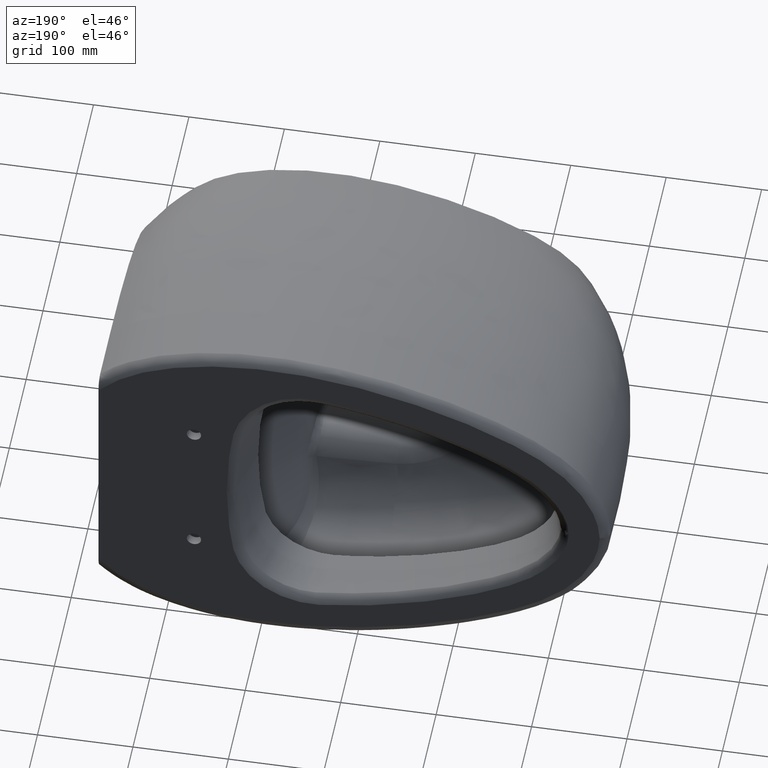
[diagram: clean part render]
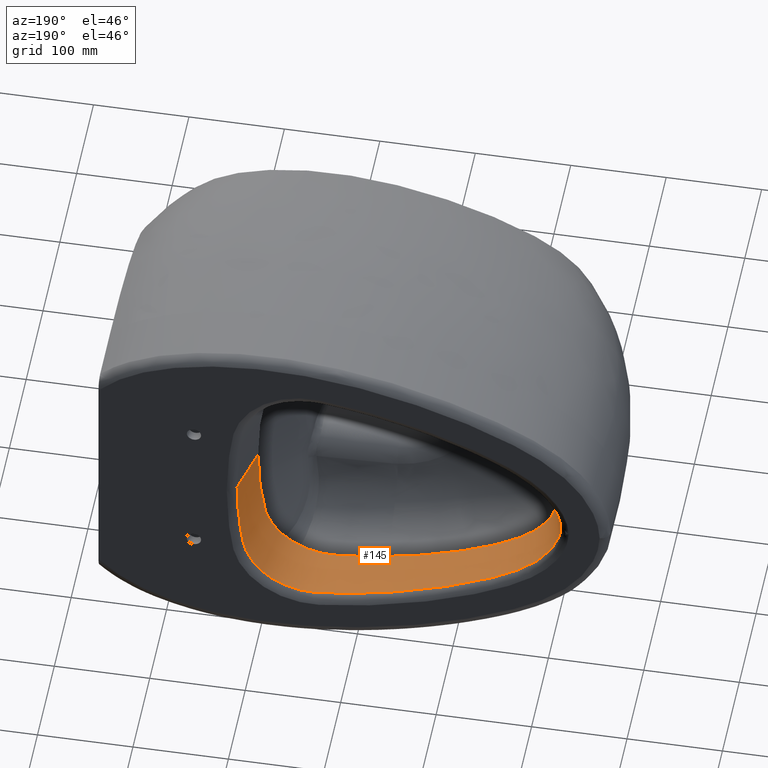
[diagram: same view with one face highlighted and labeled with its STEP entity id]
A machine part, auxiliary view. The second image highlights one B-rep face of the part: STEP entity #145.
In plain terms, the highlighted face is a freeform B-spline surface patch.
Its self-contained STEP definition (entity closure, byte-faithful):
#145=ADVANCED_FACE('',(#244),#205,.F.);
#205=B_SPLINE_SURFACE_WITH_KNOTS('',3,3,((#2837,#2838,#2839,#2840,#2841,
#2842,#2843),(#2844,#2845,#2846,#2847,#2848,#2849,#2850),(#2851,#2852,#2853,
#2854,#2855,#2856,#2857),(#2858,#2859,#2860,#2861,#2862,#2863,#2864),(#2865,
#2866,#2867,#2868,#2869,#2870,#2871),(#2872,#2873,#2874,#2875,#2876,#2877,
#2878),(#2879,#2880,#2881,#2882,#2883,#2884,#2885),(#2886,#2887,#2888,#2889,
#2890,#2891,#2892),(#2893,#2894,#2895,#2896,#2897,#2898,#2899),(#2900,#2901,
#2902,#2903,#2904,#2905,#2906),(#2907,#2908,#2909,#2910,#2911,#2912,#2913),
(#2914,#2915,#2916,#2917,#2918,#2919,#2920),(#2921,#2922,#2923,#2924,#2925,
#2926,#2927),(#2928,#2929,#2930,#2931,#2932,#2933,#2934),(#2935,#2936,#2937,
#2938,#2939,#2940,#2941),(#2942,#2943,#2944,#2945,#2946,#2947,#2948),(#2949,
#2950,#2951,#2952,#2953,#2954,#2955),(#2956,#2957,#2958,#2959,#2960,#2961,
#2962),(#2963,#2964,#2965,#2966,#2967,#2968,#2969),(#2970,#2971,#2972,#2973,
#2974,#2975,#2976),(#2977,#2978,#2979,#2980,#2981,#2982,#2983),(#2984,#2985,
#2986,#2987,#2988,#2989,#2990),(#2991,#2992,#2993,#2994,#2995,#2996,#2997),
(#2998,#2999,#3000,#3001,#3002,#3003,#3004),(#3005,#3006,#3007,#3008,#3009,
#3010,#3011),(#3012,#3013,#3014,#3015,#3016,#3017,#3018),(#3019,#3020,#3021,
#3022,#3023,#3024,#3025),(#3026,#3027,#3028,#3029,#3030,#3031,#3032),(#3033,
#3034,#3035,#3036,#3037,#3038,#3039),(#3040,#3041,#3042,#3043,#3044,#3045,
#3046),(#3047,#3048,#3049,#3050,#3051,#3052,#3053),(#3054,#3055,#3056,#3057,
#3058,#3059,#3060),(#3061,#3062,#3063,#3064,#3065,#3066,#3067),(#3068,#3069,
#3070,#3071,#3072,#3073,#3074),(#3075,#3076,#3077,#3078,#3079,#3080,#3081),
(#3082,#3083,#3084,#3085,#3086,#3087,#3088),(#3089,#3090,#3091,#3092,#3093,
#3094,#3095),(#3096,#3097,#3098,#3099,#3100,#3101,#3102),(#3103,#3104,#3105,
#3106,#3107,#3108,#3109),(#3110,#3111,#3112,#3113,#3114,#3115,#3116),(#3117,
#3118,#3119,#3120,#3121,#3122,#3123),(#3124,#3125,#3126,#3127,#3128,#3129,
#3130),(#3131,#3132,#3133,#3134,#3135,#3136,#3137),(#3138,#3139,#3140,#3141,
#3142,#3143,#3144),(#3145,#3146,#3147,#3148,#3149,#3150,#3151),(#3152,#3153,
#3154,#3155,#3156,#3157,#3158),(#3159,#3160,#3161,#3162,#3163,#3164,#3165)),
 .UNSPECIFIED.,.F.,.F.,.F.,(4,1,1,1,1,1,1,1,1,1,1,1,1,1,1,1,1,1,1,1,1,1,
1,1,1,1,1,1,1,1,1,1,1,1,1,1,1,1,1,1,1,1,1,1,4),(4,3,4),(0.,0.0078125,0.015625,
0.03125,0.0625,0.09375,0.125,0.140625,0.15625,0.171875,0.1875,0.203125,
0.21875,0.234375,0.25,0.28125,0.3125,0.375,0.40625,0.4375,0.46875,0.5,0.5625,
0.59375,0.6015625,0.609375,0.611328125,0.61328125,0.6171875,0.625,0.65625,
0.671875,0.6875,0.71875,0.75,0.78125,0.8125,0.828125,0.8359375,0.83984375,
0.84375,0.845703125,0.859375,0.875,1.),(0.,0.99009900990099,1.),
 .UNSPECIFIED.);
#244=FACE_OUTER_BOUND('',#306,.T.);
#306=EDGE_LOOP('',(#426,#427,#428,#429,#430,#431));
#426=ORIENTED_EDGE('',*,*,#804,.F.);
#427=ORIENTED_EDGE('',*,*,#805,.T.);
#428=ORIENTED_EDGE('',*,*,#806,.T.);
#429=ORIENTED_EDGE('',*,*,#807,.T.);
#430=ORIENTED_EDGE('',*,*,#787,.T.);
#431=ORIENTED_EDGE('',*,*,#808,.F.);
#688=VERTEX_POINT('',#2169);
#689=VERTEX_POINT('',#2170);
#700=VERTEX_POINT('',#2550);
#701=VERTEX_POINT('',#2561);
#702=VERTEX_POINT('',#2740);
#703=VERTEX_POINT('',#2822);
#787=EDGE_CURVE('',#688,#689,#934,.T.);
#804=EDGE_CURVE('',#701,#700,#950,.T.);
#805=EDGE_CURVE('',#701,#702,#951,.T.);
#806=EDGE_CURVE('',#702,#703,#952,.T.);
#807=EDGE_CURVE('',#703,#688,#953,.T.);
#808=EDGE_CURVE('',#700,#689,#954,.T.);
#934=B_SPLINE_CURVE_WITH_KNOTS('',3,(#2149,#2150,#2151,#2152,#2153,#2154,
#2155,#2156,#2157,#2158,#2159,#2160,#2161,#2162,#2163,#2164,#2165,#2166,
#2167,#2168),.UNSPECIFIED.,.F.,.F.,(4,2,2,2,2,2,2,2,2,4),(0.,0.03125,0.0624999999999999,
0.125,0.25,0.375,0.5,0.625,0.75,1.),.UNSPECIFIED.);
#950=B_SPLINE_CURVE_WITH_KNOTS('',3,(#2562,#2563,#2564,#2565,#2566,#2567,
#2568,#2569,#2570,#2571,#2572,#2573),.UNSPECIFIED.,.F.,.F.,(4,2,2,2,2,4),
(0.,0.5,0.625,0.75,0.875,1.),.UNSPECIFIED.);
#951=B_SPLINE_CURVE_WITH_KNOTS('',3,(#2736,#2737,#2738,#2739),
 .UNSPECIFIED.,.F.,.F.,(4,4),(0.,1.),.UNSPECIFIED.);
#952=B_SPLINE_CURVE_WITH_KNOTS('',3,(#2741,#2742,#2743,#2744,#2745,#2746,
#2747,#2748,#2749,#2750,#2751,#2752,#2753,#2754,#2755,#2756,#2757,#2758,
#2759,#2760,#2761,#2762,#2763,#2764,#2765,#2766,#2767,#2768,#2769,#2770,
#2771,#2772,#2773,#2774,#2775,#2776,#2777,#2778,#2779,#2780,#2781,#2782,
#2783,#2784,#2785,#2786,#2787,#2788,#2789,#2790,#2791,#2792,#2793,#2794,
#2795,#2796,#2797,#2798,#2799,#2800,#2801,#2802,#2803,#2804,#2805,#2806,
#2807,#2808,#2809,#2810,#2811,#2812,#2813,#2814,#2815,#2816,#2817,#2818,
#2819,#2820,#2821),.UNSPECIFIED.,.F.,.F.,(4,2,2,2,2,1,1,2,1,2,2,2,2,2,2,
2,2,1,1,2,2,2,2,2,2,2,1,1,1,2,2,2,2,2,2,1,1,1,2,2,2,2,2,2,2,4),(0.,0.124999999999844,
0.156249999999805,0.187499999999766,0.218749999999728,0.234374999999708,
0.242187499999698,0.246093749999694,0.248046874999691,0.24902343749969,
0.249999999999689,0.312499999999635,0.343749999999608,0.359374999999595,
0.367187499999588,0.371093749999585,0.373046874999583,0.374023437499582,
0.374511718749582,0.374755859374581,0.374999999999581,0.406249999999604,
0.437499999999628,0.468749999999651,0.484374999999662,0.492187499999668,
0.496093749999671,0.498046874999672,0.499023437499673,0.499511718749674,
0.499999999999674,0.624999999999757,0.687499999999799,0.71874999999982,
0.73437499999983,0.742187499999835,0.746093749999838,0.748046874999839,
0.74902343749984,0.749999999999841,0.81249999999988,0.87499999999992,0.93749999999996,
0.96874999999998,0.98437499999999,1.),.UNSPECIFIED.);
#953=B_SPLINE_CURVE_WITH_KNOTS('',3,(#2823,#2824,#2825,#2826),
 .UNSPECIFIED.,.F.,.F.,(4,4),(0.,1.),.UNSPECIFIED.);
#954=B_SPLINE_CURVE_WITH_KNOTS('',3,(#2827,#2828,#2829,#2830,#2831,#2832,
#2833,#2834,#2835,#2836),.UNSPECIFIED.,.F.,.F.,(4,2,2,2,4),(0.,0.250000000000002,
0.375000000000002,0.500000000000002,1.),.UNSPECIFIED.);
#2149=CARTESIAN_POINT('',(-4.68450389251631,373.011574058695,-34.684684684681));
#2150=CARTESIAN_POINT('',(-4.68450389251613,373.011574058695,-37.2037538531143));
#2151=CARTESIAN_POINT('',(-4.41474941482493,373.002536228739,-39.671128940657));
#2152=CARTESIAN_POINT('',(-3.58925548294863,372.975156375918,-44.5510764920664));
#2153=CARTESIAN_POINT('',(-3.03187753590156,372.956543322007,-46.963333586549));
#2154=CARTESIAN_POINT('',(-0.972341908452483,372.887829924153,-54.1258662573247));
#2155=CARTESIAN_POINT('',(0.917033854272169,372.824953225657,-58.7713456176021));
#2156=CARTESIAN_POINT('',(7.69366799256242,372.599362311384,-71.9202477777133));
#2157=CARTESIAN_POINT('',(13.8365630634917,372.394806290785,-79.9305153539391));
#2158=CARTESIAN_POINT('',(27.7509534725762,371.931035875029,-93.8393245571826));
#2159=CARTESIAN_POINT('',(35.6431003139265,371.66857428794,-99.8691441305384));
#2160=CARTESIAN_POINT('',(52.2423342454432,371.115216832952,-110.60282243534));
#2161=CARTESIAN_POINT('',(60.835969284613,370.82923150064,-115.310476695555));
#2162=CARTESIAN_POINT('',(78.3163784290997,370.247038939635,-124.068500691922));
#2163=CARTESIAN_POINT('',(87.2216789707791,369.950439891654,-128.077348903412));
#2164=CARTESIAN_POINT('',(105.268974695114,369.349246657315,-135.564341338923));
#2165=CARTESIAN_POINT('',(114.416243230933,369.044557877606,-139.030668165592));
#2166=CARTESIAN_POINT('',(142.214906145932,368.118706066951,-148.629542427032));
#2167=CARTESIAN_POINT('',(161.204977401436,367.486157307112,-154.006819646068));
#2168=CARTESIAN_POINT('',(180.419373846148,366.846151837253,-158.288270898246));
#2169=CARTESIAN_POINT('',(-4.68450397795358,373.011574060015,-34.6855868679316));
#2170=CARTESIAN_POINT('',(180.41938385458,366.846161480338,-158.288227423652));
#2550=CARTESIAN_POINT('',(273.57230624591,363.743439757752,-156.478493325376));
#2561=CARTESIAN_POINT('',(310.715017309683,362.506294025375,-34.6851593086544));
#2562=CARTESIAN_POINT('',(310.715017267497,362.506294031167,-34.6846846846841));
#2563=CARTESIAN_POINT('',(310.715016910963,362.506292700564,-56.993026893055));
#2564=CARTESIAN_POINT('',(309.165069047534,362.561712901396,-79.1819059586827));
#2565=CARTESIAN_POINT('',(305.305137666137,362.685448519114,-106.769863903267));
#2566=CARTESIAN_POINT('',(304.53851061223,362.711961952862,-112.316859503544));
#2567=CARTESIAN_POINT('',(301.427026098593,362.815465063649,-122.878235832974));
#2568=CARTESIAN_POINT('',(299.223797367524,362.888688889239,-128.006643434416));
#2569=CARTESIAN_POINT('',(293.644875153611,363.074476381591,-137.598346642469));
#2570=CARTESIAN_POINT('',(290.3271538595,363.185374371948,-141.986705863229));
#2571=CARTESIAN_POINT('',(282.647539434875,363.441228139899,-149.958004316312));
#2572=CARTESIAN_POINT('',(278.296543242479,363.585926471692,-153.507388923651));
#2573=CARTESIAN_POINT('',(273.572283539575,363.743446021292,-156.478456888224));
#2736=CARTESIAN_POINT('',(310.715017267497,362.506294031167,-34.6846846846867));
#2737=CARTESIAN_POINT('',(315.138626660977,379.015437543277,-34.6846846846868));
#2738=CARTESIAN_POINT('',(319.562236054474,395.524581055447,-34.6846846846869));
#2739=CARTESIAN_POINT('',(323.985845447959,412.033724567572,-34.6846846846869));
#2740=CARTESIAN_POINT('',(323.985845448559,412.033724567427,-34.6851796389409));
#2741=CARTESIAN_POINT('',(323.985845447961,412.033724567579,-34.6846846846836));
#2742=CARTESIAN_POINT('',(323.985845447961,412.033724567578,-55.7695589383243));
#2743=CARTESIAN_POINT('',(322.695804631658,412.046542313083,-76.8518271126382));
#2744=CARTESIAN_POINT('',(319.479602939617,412.078421330744,-103.014815608535));
#2745=CARTESIAN_POINT('',(318.75412033863,412.08560918819,-108.236108639438));
#2746=CARTESIAN_POINT('',(317.155588302037,412.101462862704,-118.656562644711));
#2747=CARTESIAN_POINT('',(315.919157442273,412.111697331766,-123.806832626016));
#2748=CARTESIAN_POINT('',(312.276450667981,412.137679952304,-133.700171461999));
#2749=CARTESIAN_POINT('',(309.926218093704,412.153231023193,-138.452153584337));
#2750=CARTESIAN_POINT('',(305.686698708586,412.18006783003,-145.126374915347));
#2751=CARTESIAN_POINT('',(303.388862357615,412.194361444857,-148.350344331482));
#2752=CARTESIAN_POINT('',(300.420425553843,412.212463864345,-151.882529763067));
#2753=CARTESIAN_POINT('',(299.089175812826,412.220516460128,-153.343894030603));
#2754=CARTESIAN_POINT('',(298.413921514593,412.224590888264,-154.065560075246));
#2755=CARTESIAN_POINT('',(298.073886662364,412.226640136024,-154.424138749363));
#2756=CARTESIAN_POINT('',(297.730282347656,412.228707252031,-154.77928559996));
#2757=CARTESIAN_POINT('',(297.500425645168,412.230089275362,-155.015283247841));
#2758=CARTESIAN_POINT('',(297.348740723141,412.231000647959,-155.169737926132));
#2759=CARTESIAN_POINT('',(292.190987272731,412.261976994739,-160.395082516557));
#2760=CARTESIAN_POINT('',(285.134961147046,412.210121916633,-166.035676668913));
#2761=CARTESIAN_POINT('',(270.789062569225,412.018218616106,-172.595723758524));
#2762=CARTESIAN_POINT('',(265.389255589607,411.935261579139,-174.446420291378));
#2763=CARTESIAN_POINT('',(256.446247588504,411.783381286573,-176.250706154519));
#2764=CARTESIAN_POINT('',(253.326402481186,411.728174725595,-176.68859641273));
#2765=CARTESIAN_POINT('',(248.468241681258,411.638563968796,-177.039466811405));
#2766=CARTESIAN_POINT('',(246.819274621124,411.607559730579,-177.105433973596));
#2767=CARTESIAN_POINT('',(244.306615581576,411.559355214468,-177.120026360306));
#2768=CARTESIAN_POINT('',(243.462538181593,411.543003969373,-177.110827848763));
#2769=CARTESIAN_POINT('',(242.1873771941,411.518052385548,-177.074925537861));
#2770=CARTESIAN_POINT('',(241.760816466037,411.509664405877,-177.059275089369));
#2771=CARTESIAN_POINT('',(241.118815160412,411.496976191311,-177.030140517033));
#2772=CARTESIAN_POINT('',(240.797274786979,411.490605518143,-177.014157252297));
#2773=CARTESIAN_POINT('',(240.421223856894,411.483126535541,-176.992996303134));
#2774=CARTESIAN_POINT('',(240.25986454662,411.479911281811,-176.98338478133));
#2775=CARTESIAN_POINT('',(240.152248715684,411.477765562029,-176.976856103983));
#2776=CARTESIAN_POINT('',(240.052634928572,411.475777552548,-176.970652840428));
#2777=CARTESIAN_POINT('',(239.012077948584,411.455003842888,-176.9052338842));
#2778=CARTESIAN_POINT('',(236.948249669892,411.435332783422,-176.738948390552));
#2779=CARTESIAN_POINT('',(230.78797667056,411.398161632368,-175.961894786554));
#2780=CARTESIAN_POINT('',(226.683460070004,411.380684600284,-175.425508949615));
#2781=CARTESIAN_POINT('',(216.450921587541,411.348389738627,-173.896252508627));
#2782=CARTESIAN_POINT('',(210.322318639785,411.333573345051,-172.905669247958));
#2783=CARTESIAN_POINT('',(199.644990777328,411.313709920108,-170.920716038388));
#2784=CARTESIAN_POINT('',(195.838654657721,411.307482636147,-170.175442613092));
#2785=CARTESIAN_POINT('',(189.764604697262,411.298778337235,-168.908327237192));
#2786=CARTESIAN_POINT('',(187.679180311291,411.295982995645,-168.461063043724));
#2787=CARTESIAN_POINT('',(184.460881981131,411.291954641422,-167.749647373729));
#2788=CARTESIAN_POINT('',(182.829194190273,411.289981625934,-167.38380763105));
#2789=CARTESIAN_POINT('',(180.88634358638,411.287752978756,-166.938547033814));
#2790=CARTESIAN_POINT('',(179.905144615088,411.28665709938,-166.711213752034));
#2791=CARTESIAN_POINT('',(179.482539631976,411.28619140457,-166.612767694329));
#2792=CARTESIAN_POINT('',(179.200338600847,411.285881825012,-166.546909858455));
#2793=CARTESIAN_POINT('',(179.011428866027,411.285675752608,-166.502724115826));
#2794=CARTESIAN_POINT('',(154.856594394298,411.259415285393,-160.845299682628));
#2795=CARTESIAN_POINT('',(133.157471719886,411.25235596343,-154.119755890766));
#2796=CARTESIAN_POINT('',(104.083723548558,411.264154669217,-143.455774523395));
#2797=CARTESIAN_POINT('',(94.973396656719,411.271837772878,-139.792461673229));
#2798=CARTESIAN_POINT('',(82.1656632429421,411.288440306398,-134.229700186745));
#2799=CARTESIAN_POINT('',(78.039298636756,411.294819439338,-132.364092359386));
#2800=CARTESIAN_POINT('',(72.0631472940901,411.305583788857,-129.557329062273));
#2801=CARTESIAN_POINT('',(70.1068342112011,411.30937073006,-128.62004146819));
#2802=CARTESIAN_POINT('',(67.2265041742412,411.315339329731,-127.21140585344));
#2803=CARTESIAN_POINT('',(65.7998703131998,411.318395700588,-126.506417042556));
#2804=CARTESIAN_POINT('',(64.1592223259951,411.322085641161,-125.682773355766));
#2805=CARTESIAN_POINT('',(63.3448449997366,411.32396142942,-125.270668162113));
#2806=CARTESIAN_POINT('',(62.9971011351988,411.324771918754,-125.093991637121));
#2807=CARTESIAN_POINT('',(62.7655552942366,411.325313704623,-124.976194038678));
#2808=CARTESIAN_POINT('',(62.6793883228733,411.325515843767,-124.932318533749));
#2809=CARTESIAN_POINT('',(53.2573957417022,411.347735112706,-120.126093696949));
#2810=CARTESIAN_POINT('',(44.158858376864,411.382434093556,-115.031019458068));
#2811=CARTESIAN_POINT('',(26.7897677677522,411.473381119981,-103.557660621451));
#2812=CARTESIAN_POINT('',(18.5422478566807,411.529552509154,-97.1148612590928));
#2813=CARTESIAN_POINT('',(3.99457030497213,411.656662828315,-82.23875047721));
#2814=CARTESIAN_POINT('',(-2.31867464687914,411.727660003017,-73.8178301584937));
#2815=CARTESIAN_POINT('',(-9.35837932047119,411.839939157324,-59.8945800605128));
#2816=CARTESIAN_POINT('',(-11.2956642244833,411.878311487952,-55.0431237090032));
#2817=CARTESIAN_POINT('',(-13.4208713366529,411.936551437507,-47.5409907962456));
#2818=CARTESIAN_POINT('',(-13.9991370326001,411.956079045413,-45.0028019118215));
#2819=CARTESIAN_POINT('',(-14.8579785118985,411.995179623201,-39.8758687067874));
#2820=CARTESIAN_POINT('',(-15.13538657952,412.014733817347,-37.2829705427515));
#2821=CARTESIAN_POINT('',(-15.1404765626824,412.033729861259,-34.6846846846847));
#2822=CARTESIAN_POINT('',(-15.1404765609514,412.033729860391,-34.6856307002495));
#2823=CARTESIAN_POINT('',(-15.1404765626709,412.033729861216,-34.6846846846847));
#2824=CARTESIAN_POINT('',(-11.6551523392818,399.026344593693,-34.6846846846847));
#2825=CARTESIAN_POINT('',(-8.16982811591674,386.01895932626,-34.6846846846847));
#2826=CARTESIAN_POINT('',(-4.6845038925164,373.011574058695,-34.6846846846847));
#2827=CARTESIAN_POINT('',(273.572283404919,363.74344523874,-156.478456715568));
#2828=CARTESIAN_POINT('',(266.774227246525,363.970089760041,-160.753720087956));
#2829=CARTESIAN_POINT('',(259.425919918306,364.214413202908,-163.76117305205));
#2830=CARTESIAN_POINT('',(247.673301698297,364.606185338089,-166.317344553908));
#2831=CARTESIAN_POINT('',(243.736410380258,364.73735050535,-166.816146834349));
#2832=CARTESIAN_POINT('',(235.825814816588,365.000688838155,-167.141810010848));
#2833=CARTESIAN_POINT('',(231.844741036837,365.133122933943,-166.923015384848));
#2834=CARTESIAN_POINT('',(211.922474580719,365.797443832727,-164.5106215512));
#2835=CARTESIAN_POINT('',(196.090648934007,366.324167977209,-161.780226488024));
#2836=CARTESIAN_POINT('',(180.419373799706,366.846156977605,-158.288271875067));
#2837=CARTESIAN_POINT('',(-17.1264671913483,419.445535360269,-34.6846846846847));
#2838=CARTESIAN_POINT('',(-12.979146091721,403.967548259682,-34.6846846846847));
#2839=CARTESIAN_POINT('',(-8.83182499214369,388.489561159282,-34.6846846846847));
#2840=CARTESIAN_POINT('',(-4.6845038925164,373.011574058695,-34.6846846846847));
#2841=CARTESIAN_POINT('',(-4.64303068152013,372.856794187689,-34.6846846846847));
#2842=CARTESIAN_POINT('',(-4.60155747052385,372.702014316683,-34.6846846846847));
#2843=CARTESIAN_POINT('',(-4.56008425952758,372.547234445677,-34.6846846846847));
#2844=CARTESIAN_POINT('',(-17.1264671913483,419.445535360269,-36.003234225338));
#2845=CARTESIAN_POINT('',(-12.9791460917211,403.967548259683,-35.967757358925));
#2846=CARTESIAN_POINT('',(-8.83182499214362,388.489561159281,-35.932280492512));
#2847=CARTESIAN_POINT('',(-4.68450389251639,373.011574058695,-35.896803626099));
#2848=CARTESIAN_POINT('',(-4.64303068152012,372.856794187689,-35.8964488574349));
#2849=CARTESIAN_POINT('',(-4.60155747052385,372.702014316683,-35.8960940887707));
#2850=CARTESIAN_POINT('',(-4.56008425952757,372.547234445677,-35.8957393201066));
#2851=CARTESIAN_POINT('',(-16.9892688164718,419.445535360269,-38.6397158448033));
#2852=CARTESIAN_POINT('',(-12.8459361196783,403.966157843832,-38.5332938370817));
#2853=CARTESIAN_POINT('',(-8.70260342293403,388.486780327577,-38.4268718293601));
#2854=CARTESIAN_POINT('',(-4.55927072614045,373.007402811139,-38.3204498216385));
#2855=CARTESIAN_POINT('',(-4.51783739917251,372.852609035975,-38.3193856015613));
#2856=CARTESIAN_POINT('',(-4.47640407220458,372.69781526081,-38.3183213814841));
#2857=CARTESIAN_POINT('',(-4.43497074523664,372.543021485646,-38.3172571614069));
#2858=CARTESIAN_POINT('',(-16.2773681289235,419.445535360269,-43.8688252088679));
#2859=CARTESIAN_POINT('',(-12.1534863881343,403.958901752859,-43.621765498179));
#2860=CARTESIAN_POINT('',(-8.02960464739337,388.472268145629,-43.3747057874901));
#2861=CARTESIAN_POINT('',(-3.90572290660393,372.985634538219,-43.1276460768013));
#2862=CARTESIAN_POINT('',(-3.86448408919604,372.830768202145,-43.1251754796944));
#2863=CARTESIAN_POINT('',(-3.82324527178814,372.675901866071,-43.1227048825875));
#2864=CARTESIAN_POINT('',(-3.78200645438025,372.521035529997,-43.1202342854806));
#2865=CARTESIAN_POINT('',(-14.2372177265357,419.445535360269,-52.8850180294216));
#2866=CARTESIAN_POINT('',(-10.1666874175191,403.938027766316,-52.3949414489463));
#2867=CARTESIAN_POINT('',(-6.09615710854913,388.430520172537,-51.9048648684712));
#2868=CARTESIAN_POINT('',(-2.02562679953209,372.923012578582,-51.4147882879959));
#2869=CARTESIAN_POINT('',(-1.98492149644192,372.767937502643,-51.4098875221911));
#2870=CARTESIAN_POINT('',(-1.94421619335175,372.612862426703,-51.4049867563864));
#2871=CARTESIAN_POINT('',(-1.90351089026158,372.457787350763,-51.4000859905816));
#2872=CARTESIAN_POINT('',(-9.33446937586602,419.445535360268,-65.1923555436388));
#2873=CARTESIAN_POINT('',(-5.39813689343747,403.888064271434,-64.3716200526499));
#2874=CARTESIAN_POINT('',(-1.46180441105341,388.330593182765,-63.550884561661));
#2875=CARTESIAN_POINT('',(2.47452807137575,372.773122093928,-62.730149070672));
#2876=CARTESIAN_POINT('',(2.51389139620004,372.61754738304,-62.7219417157621));
#2877=CARTESIAN_POINT('',(2.55325472102433,372.461972672151,-62.7137343608522));
#2878=CARTESIAN_POINT('',(2.59261804584863,372.306397961263,-62.7055270059423));
#2879=CARTESIAN_POINT('',(-0.956445660841981,419.445535360268,-78.6767812001573));
#2880=CARTESIAN_POINT('',(2.75560747215585,403.802516547928,-77.491731990776));
#2881=CARTESIAN_POINT('',(6.46766060511181,388.159497735744,-76.3066827813948));
#2882=CARTESIAN_POINT('',(10.1797137381105,372.516478923401,-75.1216335720135));
#2883=CARTESIAN_POINT('',(10.2168342694405,372.360048735278,-75.1097830799197));
#2884=CARTESIAN_POINT('',(10.2539548007705,372.203618547154,-75.0979325878259));
#2885=CARTESIAN_POINT('',(10.2910753321005,372.047188359031,-75.0860820957321));
#2886=CARTESIAN_POINT('',(7.64338833730811,419.445535360267,-88.7155204632897));
#2887=CARTESIAN_POINT('',(11.1227228510516,403.714787243791,-87.2602057440047));
#2888=CARTESIAN_POINT('',(14.6020573647553,387.984039127462,-85.8048910247197));
#2889=CARTESIAN_POINT('',(18.0813918784998,372.253291010981,-84.3495763054347));
#2890=CARTESIAN_POINT('',(18.1161852236372,372.095983529816,-84.3350231582418));
#2891=CARTESIAN_POINT('',(18.1509785687747,371.938676048651,-84.320470011049));
#2892=CARTESIAN_POINT('',(18.1857719139121,371.781368567487,-84.3059168638561));
#2893=CARTESIAN_POINT('',(15.2672116648689,419.445535360267,-96.0109910248128));
#2894=CARTESIAN_POINT('',(18.5398877333955,403.637026203705,-94.3597168751356));
#2895=CARTESIAN_POINT('',(21.8125638018841,387.828517047285,-92.7084427254586));
#2896=CARTESIAN_POINT('',(25.0852398704118,372.020007890719,-91.0571685757815));
#2897=CARTESIAN_POINT('',(25.1179666310971,371.861922799153,-91.0406558342847));
#2898=CARTESIAN_POINT('',(25.1506933917824,371.703837707588,-91.024143092788));
#2899=CARTESIAN_POINT('',(25.1834201524676,371.545752616022,-91.0076303512912));
#2900=CARTESIAN_POINT('',(21.3043088850131,419.445535360267,-101.130429072038));
#2901=CARTESIAN_POINT('',(24.4137391385316,403.575435994104,-99.341157664043));
#2902=CARTESIAN_POINT('',(27.5231693920133,387.705336628077,-97.5518862560479));
#2903=CARTESIAN_POINT('',(30.632599645533,371.835237261909,-95.7626148480527));
#2904=CARTESIAN_POINT('',(30.6636939480682,371.676536268247,-95.7447221339728));
#2905=CARTESIAN_POINT('',(30.6947882506034,371.517835274586,-95.7268294198928));
#2906=CARTESIAN_POINT('',(30.7258825531386,371.359134280924,-95.7089367058128));
#2907=CARTESIAN_POINT('',(27.6078874895842,419.445535360267,-105.913297795921));
#2908=CARTESIAN_POINT('',(30.5459320451079,403.511158265821,-103.996431490184));
#2909=CARTESIAN_POINT('',(33.4839766005959,387.576781171508,-102.079565184446));
#2910=CARTESIAN_POINT('',(36.4220211561209,371.642404077057,-100.162698878709));
#2911=CARTESIAN_POINT('',(36.4514016016761,371.483060306113,-100.143530215652));
#2912=CARTESIAN_POINT('',(36.4807820472314,371.323716535168,-100.124361552594));
#2913=CARTESIAN_POINT('',(36.5101624927866,371.164372764223,-100.105192889537));
#2914=CARTESIAN_POINT('',(34.1279645273441,419.445535360267,-110.399467720618));
#2915=CARTESIAN_POINT('',(36.8882118971926,403.444690391278,-108.363469515008));
#2916=CARTESIAN_POINT('',(39.6484592670067,387.443845422416,-106.327471309398));
#2917=CARTESIAN_POINT('',(42.4087066368565,371.443000453423,-104.291473103788));
#2918=CARTESIAN_POINT('',(42.436309110555,371.282992003733,-104.271113121732));
#2919=CARTESIAN_POINT('',(42.4639115842535,371.122983554043,-104.250753139676));
#2920=CARTESIAN_POINT('',(42.491514057952,370.962975104353,-104.23039315762));
#2921=CARTESIAN_POINT('',(40.8145570470547,419.445535360267,-114.628809370287));
#2922=CARTESIAN_POINT('',(43.3944422504112,403.376459193151,-112.477933070264));
#2923=CARTESIAN_POINT('',(45.9743274537344,387.307383026159,-110.327056770242));
#2924=CARTESIAN_POINT('',(48.5542126570923,371.238306859038,-108.176180470219));
#2925=CARTESIAN_POINT('',(48.5800115091259,371.077616097367,-108.154671707219));
#2926=CARTESIAN_POINT('',(48.6058103611595,370.916925335696,-108.133162944219));
#2927=CARTESIAN_POINT('',(48.631609213193,370.756234574024,-108.111654181218));
#2928=CARTESIAN_POINT('',(47.6347943953483,419.445535360267,-118.64060286234));
#2929=CARTESIAN_POINT('',(50.0320982799195,403.306818102903,-116.378337866014));
#2930=CARTESIAN_POINT('',(52.4294021644585,387.168100845658,-114.116072869688));
#2931=CARTESIAN_POINT('',(54.8267060490311,371.02938358829,-111.853807873363));
#2932=CARTESIAN_POINT('',(54.8506790878768,370.867996415716,-111.8311852234));
#2933=CARTESIAN_POINT('',(54.8746521267226,370.706609243143,-111.808562573436));
#2934=CARTESIAN_POINT('',(54.8986251655683,370.545222070569,-111.785939923473));
#2935=CARTESIAN_POINT('',(54.5558059188569,419.445535360267,-122.474128314188));
#2936=CARTESIAN_POINT('',(56.7672700692044,403.236166686423,-120.105900816053));
#2937=CARTESIAN_POINT('',(58.9787342195208,387.026798012692,-117.737673317919));
#2938=CARTESIAN_POINT('',(61.1901983698698,370.817429338842,-115.369445819784));
#2939=CARTESIAN_POINT('',(61.2123130113733,370.655335652104,-115.345763544803));
#2940=CARTESIAN_POINT('',(61.2344276528768,370.493241965365,-115.322081269821));
#2941=CARTESIAN_POINT('',(61.2565422943803,370.331148278627,-115.29839899484));
#2942=CARTESIAN_POINT('',(63.9030347328238,419.445535360267,-127.364118506792));
#2943=CARTESIAN_POINT('',(65.8621857928725,403.140791993786,-124.862877199906));
#2944=CARTESIAN_POINT('',(67.8213368528915,386.836048627412,-122.36163589302));
#2945=CARTESIAN_POINT('',(69.7804879129417,370.531305260925,-119.860394586135));
#2946=CARTESIAN_POINT('',(69.8000794235422,370.36825782726,-119.835382173066));
#2947=CARTESIAN_POINT('',(69.8196709341427,370.205210393595,-119.810369759997));
#2948=CARTESIAN_POINT('',(69.8392624447432,370.04216295993,-119.785357346928));
#2949=CARTESIAN_POINT('',(75.7821857470774,419.445535360266,-133.092112311082));
#2950=CARTESIAN_POINT('',(77.4204511509454,403.019590344055,-130.435261666339));
#2951=CARTESIAN_POINT('',(79.0587165547853,386.593645327943,-127.778411021596));
#2952=CARTESIAN_POINT('',(80.6969819586547,370.167700311725,-125.121560376853));
#2953=CARTESIAN_POINT('',(80.7133646126934,370.003440861563,-125.094991870406));
#2954=CARTESIAN_POINT('',(80.7297472667321,369.839181411401,-125.068423363958));
#2955=CARTESIAN_POINT('',(80.7461299207708,369.674921961238,-125.041854857511));
#2956=CARTESIAN_POINT('',(95.0895114819796,419.445535360266,-141.602348593181));
#2957=CARTESIAN_POINT('',(96.2090613369693,402.822505805634,-138.707303273312));
#2958=CARTESIAN_POINT('',(97.3286111919338,386.199476251091,-135.812257953443));
#2959=CARTESIAN_POINT('',(98.448161046925,369.576446696453,-132.917212633573));
#2960=CARTESIAN_POINT('',(98.4593565454749,369.410216400907,-132.888262180374));
#2961=CARTESIAN_POINT('',(98.4705520440248,369.24398610536,-132.859311727176));
#2962=CARTESIAN_POINT('',(98.4817475425747,369.077755809814,-132.830361273977));
#2963=CARTESIAN_POINT('',(114.788962611142,419.445535360266,-149.180268205021));
#2964=CARTESIAN_POINT('',(115.375151634477,402.621555452126,-146.081090492558));
#2965=CARTESIAN_POINT('',(115.96134065779,385.797575544063,-142.981912780095));
#2966=CARTESIAN_POINT('',(116.547529681126,368.973595635917,-139.882735067632));
#2967=CARTESIAN_POINT('',(116.553391571359,368.805355836835,-139.851743290507));
#2968=CARTESIAN_POINT('',(116.559253461593,368.637116037754,-139.820751513383));
#2969=CARTESIAN_POINT('',(116.565115351826,368.468876238673,-139.789759736258));
#2970=CARTESIAN_POINT('',(134.790368197807,419.445535360267,-155.895672454241));
#2971=CARTESIAN_POINT('',(134.837037305109,402.417457759859,-152.609828710546));
#2972=CARTESIAN_POINT('',(134.88370641239,385.389380159517,-149.32398496685));
#2973=CARTESIAN_POINT('',(134.930375519694,368.361302559102,-146.038141223155));
#2974=CARTESIAN_POINT('',(134.930842210767,368.191021783098,-146.005282785718));
#2975=CARTESIAN_POINT('',(134.93130890184,368.020741007094,-145.972424348281));
#2976=CARTESIAN_POINT('',(134.931775592913,367.850460231089,-145.939565910844));
#2977=CARTESIAN_POINT('',(149.926099020286,419.445535360267,-160.512857138023));
#2978=CARTESIAN_POINT('',(149.564945472902,402.262995237104,-157.096253676736));
#2979=CARTESIAN_POINT('',(149.203791925499,385.080455113999,-153.679650215449));
#2980=CARTESIAN_POINT('',(148.842638378117,367.897914990831,-150.263046754161));
#2981=CARTESIAN_POINT('',(148.839026842643,367.726089589599,-150.228880719548));
#2982=CARTESIAN_POINT('',(148.835415307169,367.554264188368,-150.194714684935));
#2983=CARTESIAN_POINT('',(148.831803771696,367.382438787136,-150.160548650322));
#2984=CARTESIAN_POINT('',(165.180205878976,419.445535360265,-164.722562496851));
#2985=CARTESIAN_POINT('',(164.407514948218,402.107342160212,-161.187182691673));
#2986=CARTESIAN_POINT('',(163.634824017443,384.769148960209,-157.651802886496));
#2987=CARTESIAN_POINT('',(162.862133086687,367.43095576015,-154.116423081319));
#2988=CARTESIAN_POINT('',(162.854406177379,367.257573828149,-154.081069283267));
#2989=CARTESIAN_POINT('',(162.846679268072,367.084191896149,-154.045715485215));
#2990=CARTESIAN_POINT('',(162.838952358764,366.910809964148,-154.010361687164));
#2991=CARTESIAN_POINT('',(185.666707444154,419.445535360242,-169.767661432834));
#2992=CARTESIAN_POINT('',(184.340829100928,401.898313868113,-166.090600965551));
#2993=CARTESIAN_POINT('',(183.014950757685,384.351092376023,-162.413540498269));
#2994=CARTESIAN_POINT('',(181.68907241446,366.803870883889,-158.736480030987));
#2995=CARTESIAN_POINT('',(181.675813631028,366.628398668968,-158.699709426314));
#2996=CARTESIAN_POINT('',(181.662554847595,366.452926454046,-158.662938821641));
#2997=CARTESIAN_POINT('',(181.649296064163,366.277454239125,-158.626168216969));
#2998=CARTESIAN_POINT('',(206.359534197691,419.445535360161,-173.924194391365));
#2999=CARTESIAN_POINT('',(204.474538177218,401.687192350853,-170.129252005898));
#3000=CARTESIAN_POINT('',(202.589542156731,383.928849341574,-166.33430962043));
#3001=CARTESIAN_POINT('',(200.704546136259,366.170506332261,-162.539367234963));
#3002=CARTESIAN_POINT('',(200.685696176054,365.992922902168,-162.501417811108));
#3003=CARTESIAN_POINT('',(200.66684621585,365.815339472075,-162.463468387254));
#3004=CARTESIAN_POINT('',(200.647996255645,365.637756041982,-162.425518963399));
#3005=CARTESIAN_POINT('',(223.301887891437,419.445535360005,-176.540483380488));
#3006=CARTESIAN_POINT('',(220.958981714449,401.51433989364,-172.670289160016));
#3007=CARTESIAN_POINT('',(218.616075537448,383.583144427295,-168.800094939544));
#3008=CARTESIAN_POINT('',(216.273169360461,365.651948960925,-164.929900719072));
#3009=CARTESIAN_POINT('',(216.249740298691,365.472637006261,-164.891198776867));
#3010=CARTESIAN_POINT('',(216.226311236921,365.293325051598,-164.852496834663));
#3011=CARTESIAN_POINT('',(216.202882175151,365.114013096934,-164.813794892458));
#3012=CARTESIAN_POINT('',(231.142018832712,419.445535359915,-177.59998675144));
#3013=CARTESIAN_POINT('',(228.587145764046,401.434354085897,-173.698454783556));
#3014=CARTESIAN_POINT('',(226.032272695367,383.423172811894,-169.796922815672));
#3015=CARTESIAN_POINT('',(223.477399626702,365.411991537872,-165.895390847788));
#3016=CARTESIAN_POINT('',(223.451850896015,365.231879725132,-165.856375528109));
#3017=CARTESIAN_POINT('',(223.426302165329,365.051767912392,-165.81736020843));
#3018=CARTESIAN_POINT('',(223.400753434642,364.871656099651,-165.778344888751));
#3019=CARTESIAN_POINT('',(234.085241330067,419.445535359877,-177.972879945363));
#3020=CARTESIAN_POINT('',(231.450751085734,401.404328491416,-174.060861906246));
#3021=CARTESIAN_POINT('',(228.816260841386,383.363121622969,-170.14884386713));
#3022=CARTESIAN_POINT('',(226.181770597053,365.321914754504,-166.236825828013));
#3023=CARTESIAN_POINT('',(226.15542569461,365.141502685819,-166.197705647622));
#3024=CARTESIAN_POINT('',(226.129080792166,364.961090617135,-166.158585467231));
#3025=CARTESIAN_POINT('',(226.102735889723,364.78067854845,-166.119465286839));
#3026=CARTESIAN_POINT('',(236.048141462493,419.44553535985,-178.21561752271));
#3027=CARTESIAN_POINT('',(233.360707306979,401.384298611359,-174.295702852628));
#3028=CARTESIAN_POINT('',(230.67327315145,383.323061862883,-170.375788182546));
#3029=CARTESIAN_POINT('',(227.985838995936,365.261825114389,-166.455873512464));
#3030=CARTESIAN_POINT('',(227.958964654381,365.081212746904,-166.416674365763));
#3031=CARTESIAN_POINT('',(227.932090312826,364.900600379419,-166.377475219062));
#3032=CARTESIAN_POINT('',(227.905215971271,364.719988011934,-166.338276072362));
#3033=CARTESIAN_POINT('',(237.357324209407,419.445535359838,-178.372512679548));
#3034=CARTESIAN_POINT('',(234.634456738566,401.370943464608,-174.44861625739));
#3035=CARTESIAN_POINT('',(231.911589267711,383.296351569391,-170.524719835233));
#3036=CARTESIAN_POINT('',(229.18872179687,365.221759674157,-166.600823413075));
#3037=CARTESIAN_POINT('',(229.161493122162,365.041013755205,-166.561584448853));
#3038=CARTESIAN_POINT('',(229.134264447453,364.860267836252,-166.522345484632));
#3039=CARTESIAN_POINT('',(229.107035772745,364.6795219173,-166.48310652041));
#3040=CARTESIAN_POINT('',(239.653028491171,419.445535359845,-178.60712619763));
#3041=CARTESIAN_POINT('',(236.86756353375,401.347540127493,-174.680036674919));
#3042=CARTESIAN_POINT('',(234.082098576314,383.249544895153,-170.752947152208));
#3043=CARTESIAN_POINT('',(231.296633618893,365.151549662797,-166.825857629497));
#3044=CARTESIAN_POINT('',(231.268778969319,364.970569710473,-166.78658673427));
#3045=CARTESIAN_POINT('',(231.240924319745,364.78958975815,-166.747315839043));
#3046=CARTESIAN_POINT('',(231.21306967017,364.608609805826,-166.708044943816));
#3047=CARTESIAN_POINT('',(246.893952187787,419.445535359838,-179.053081315505));
#3048=CARTESIAN_POINT('',(243.912219337804,401.273684188289,-175.119741912623));
#3049=CARTESIAN_POINT('',(240.930486487807,383.101833016749,-171.186402509742));
#3050=CARTESIAN_POINT('',(237.948753637824,364.929981845196,-167.25306310686));
#3051=CARTESIAN_POINT('',(237.918936309324,364.74826333348,-167.213729712831));
#3052=CARTESIAN_POINT('',(237.889118980824,364.566544821765,-167.174396318802));
#3053=CARTESIAN_POINT('',(237.859301652325,364.384826310049,-167.135062924774));
#3054=CARTESIAN_POINT('',(256.152346212547,419.445535359842,-178.402791074377));
#3055=CARTESIAN_POINT('',(252.920311046188,401.179228819717,-174.495600564983));
#3056=CARTESIAN_POINT('',(249.688275879817,382.912922279596,-170.588410055589));
#3057=CARTESIAN_POINT('',(246.456240713458,364.646615739467,-166.681219546195));
#3058=CARTESIAN_POINT('',(246.423920361794,364.463952674066,-166.642147641101));
#3059=CARTESIAN_POINT('',(246.391600010131,364.281289608664,-166.603075736007));
#3060=CARTESIAN_POINT('',(246.359279658467,364.098626543263,-166.564003830913));
#3061=CARTESIAN_POINT('',(266.440658911359,419.445535359843,-176.009527681318));
#3062=CARTESIAN_POINT('',(262.932449148836,401.074200408834,-172.176444017898));
#3063=CARTESIAN_POINT('',(259.424239386299,382.702865457824,-168.343360354479));
#3064=CARTESIAN_POINT('',(255.916029623776,364.331530506811,-164.510276691059));
#3065=CARTESIAN_POINT('',(255.880947526151,364.147817157301,-164.471945854425));
#3066=CARTESIAN_POINT('',(255.845865428526,363.964103807791,-164.433615017791));
#3067=CARTESIAN_POINT('',(255.8107833309,363.780390458281,-164.395284181156));
#3068=CARTESIAN_POINT('',(276.420826600107,419.445535359842,-172.549043409931));
#3069=CARTESIAN_POINT('',(272.644271861342,400.972332426094,-168.81430897974));
#3070=CARTESIAN_POINT('',(268.867717122563,382.499129492341,-165.07957454955));
#3071=CARTESIAN_POINT('',(265.091162383798,364.02592655859,-161.34484011936));
#3072=CARTESIAN_POINT('',(265.05339683641,363.841194529253,-161.307492775058));
#3073=CARTESIAN_POINT('',(265.015631289023,363.656462499915,-161.270145430756));
#3074=CARTESIAN_POINT('',(264.977865741635,363.471730470578,-161.232798086454));
#3075=CARTESIAN_POINT('',(288.106378728014,419.445535359843,-166.283952959537));
#3076=CARTESIAN_POINT('',(284.018120017118,400.852974408446,-162.726638052011));
#3077=CARTESIAN_POINT('',(279.929861306209,382.260413457037,-159.169323144484));
#3078=CARTESIAN_POINT('',(275.841602595313,363.667852505637,-155.612008236957));
#3079=CARTESIAN_POINT('',(275.800720008204,363.481926896123,-155.576435087882));
#3080=CARTESIAN_POINT('',(275.759837421095,363.296001286609,-155.540861938806));
#3081=CARTESIAN_POINT('',(275.718954833986,363.110075677095,-155.505288789731));
#3082=CARTESIAN_POINT('',(300.243815529629,419.445535359843,-155.996136934113));
#3083=CARTESIAN_POINT('',(295.831594609802,400.729007583962,-152.720832736843));
#3084=CARTESIAN_POINT('',(291.419373689961,382.012479808062,-149.445528539572));
#3085=CARTESIAN_POINT('',(287.007152770134,363.295952032179,-146.170224342302));
#3086=CARTESIAN_POINT('',(286.963030560936,363.10878675442,-146.137471300329));
#3087=CARTESIAN_POINT('',(286.918908351738,362.921621476661,-146.104718258357));
#3088=CARTESIAN_POINT('',(286.874786142539,362.734456198903,-146.071965216384));
#3089=CARTESIAN_POINT('',(309.957777607465,419.445535359843,-143.394588183675));
#3090=CARTESIAN_POINT('',(305.289919873065,400.629671898555,-140.464277828912));
#3091=CARTESIAN_POINT('',(300.622062138653,381.81380843724,-137.533967474149));
#3092=CARTESIAN_POINT('',(295.954204404254,362.997944975949,-134.603657119386));
#3093=CARTESIAN_POINT('',(295.90752582691,362.809786341336,-134.574354015838));
#3094=CARTESIAN_POINT('',(295.860847249566,362.621627706723,-134.545050912291));
#3095=CARTESIAN_POINT('',(295.814168672222,362.43346907211,-134.515747808743));
#3096=CARTESIAN_POINT('',(315.675121866686,419.445535359843,-131.431374748836));
#3097=CARTESIAN_POINT('',(310.858299580183,400.571156105369,-128.825736729378));
#3098=CARTESIAN_POINT('',(306.041477293666,381.696776850862,-126.220098709921));
#3099=CARTESIAN_POINT('',(301.224655007163,362.822397596387,-123.614460690464));
#3100=CARTESIAN_POINT('',(301.176486784298,362.633653803842,-123.588404310269));
#3101=CARTESIAN_POINT('',(301.128318561433,362.444910011298,-123.562347930075));
#3102=CARTESIAN_POINT('',(301.080150338568,362.256166218753,-123.53629154988));
#3103=CARTESIAN_POINT('',(318.292708884019,419.445535359843,-122.567292613787));
#3104=CARTESIAN_POINT('',(313.411650387357,400.544233609956,-120.202082522364));
#3105=CARTESIAN_POINT('',(308.53059189068,381.642931860032,-117.836872430942));
#3106=CARTESIAN_POINT('',(303.649533394018,362.741630110144,-115.471662339519));
#3107=CARTESIAN_POINT('',(303.600722809051,362.552617092645,-115.448010238605));
#3108=CARTESIAN_POINT('',(303.551912224085,362.363604075146,-115.424358137691));
#3109=CARTESIAN_POINT('',(303.503101639118,362.174591057647,-115.400706036776));
#3110=CARTESIAN_POINT('',(319.252714054674,419.445535359843,-118.051500806927));
#3111=CARTESIAN_POINT('',(314.346795127134,400.534403087971,-115.808062308144));
#3112=CARTESIAN_POINT('',(309.440876199578,381.623270816059,-113.564623809362));
#3113=CARTESIAN_POINT('',(304.534957272037,362.712138544185,-111.321185310579));
#3114=CARTESIAN_POINT('',(304.485898082762,362.523027221466,-111.298750925591));
#3115=CARTESIAN_POINT('',(304.436838893486,362.333915898747,-111.276316540603));
#3116=CARTESIAN_POINT('',(304.387779704211,362.144804576029,-111.253882155615));
#3117=CARTESIAN_POINT('',(319.688337242787,419.445535359843,-115.450195971469));
#3118=CARTESIAN_POINT('',(314.773626972496,400.52985935139,-113.277326153475));
#3119=CARTESIAN_POINT('',(309.858916702191,381.614183342897,-111.104456335481));
#3120=CARTESIAN_POINT('',(304.944206431901,362.698507334443,-108.931586517487));
#3121=CARTESIAN_POINT('',(304.895059329198,362.509350574358,-108.909857819307));
#3122=CARTESIAN_POINT('',(304.845912226495,362.320193814274,-108.888129121127));
#3123=CARTESIAN_POINT('',(304.796765123792,362.131037054189,-108.866400422947));
#3124=CARTESIAN_POINT('',(319.937330408601,419.445535359843,-113.820913963732));
#3125=CARTESIAN_POINT('',(315.015039022784,400.527347386356,-111.691745814089));
#3126=CARTESIAN_POINT('',(310.092747636952,381.609159412828,-109.562577664447));
#3127=CARTESIAN_POINT('',(305.170456251134,362.690971439339,-107.433409514805));
#3128=CARTESIAN_POINT('',(305.121233337276,362.501789559604,-107.412117833309));
#3129=CARTESIAN_POINT('',(305.072010423418,362.312607679869,-107.390826151812));
#3130=CARTESIAN_POINT('',(305.022787509559,362.123425800134,-107.369534470316));
#3131=CARTESIAN_POINT('',(320.431904233057,419.445535359843,-110.563099906928));
#3132=CARTESIAN_POINT('',(315.496766210293,400.522284216585,-108.521285905651));
#3133=CARTESIAN_POINT('',(310.561628187514,381.599033073284,-106.479471904374));
#3134=CARTESIAN_POINT('',(305.62649016475,362.675781930025,-104.437657903097));
#3135=CARTESIAN_POINT('',(305.577138784522,362.486549418592,-104.417239763084));
#3136=CARTESIAN_POINT('',(305.527787404295,362.29731690716,-104.396821623071));
#3137=CARTESIAN_POINT('',(305.478436024067,362.108084395727,-104.376403483059));
#3138=CARTESIAN_POINT('',(321.183837849249,419.445535359843,-105.342883763786));
#3139=CARTESIAN_POINT('',(316.227909032293,400.514628282477,-103.441383765628));
#3140=CARTESIAN_POINT('',(311.271980215323,381.583721205066,-101.53988376747));
#3141=CARTESIAN_POINT('',(306.316051398368,362.6528141277,-99.6383837693118));
#3142=CARTESIAN_POINT('',(306.266492110198,362.463505056926,-99.6193687693302));
#3143=CARTESIAN_POINT('',(306.216932822029,362.274195986153,-99.6003537693486));
#3144=CARTESIAN_POINT('',(306.167373533859,362.084886915379,-99.5813387693671));
#3145=CARTESIAN_POINT('',(324.531842156466,419.445535359843,-79.5127306313202));
#3146=CARTESIAN_POINT('',(319.484999005811,400.480484834769,-78.3074410268678));
#3147=CARTESIAN_POINT('',(314.438155855138,381.515434309636,-77.1021514224156));
#3148=CARTESIAN_POINT('',(309.391312704483,362.55038378456,-75.8968618179633));
#3149=CARTESIAN_POINT('',(309.340844272977,362.360733279309,-75.8848089219188));
#3150=CARTESIAN_POINT('',(309.29037584147,362.171082774058,-75.8727560258743));
#3151=CARTESIAN_POINT('',(309.239907409964,361.981432268808,-75.8607031298297));
#3152=CARTESIAN_POINT('',(325.971833141345,419.445535359843,-55.7815467176335));
#3153=CARTESIAN_POINT('',(320.886227850068,400.465788250307,-55.2139141031151));
#3154=CARTESIAN_POINT('',(315.800622558773,381.486041140703,-54.6462814885968));
#3155=CARTESIAN_POINT('',(310.715017267497,362.506294031167,-54.0786488740784));
#3156=CARTESIAN_POINT('',(310.664161214584,362.316496560072,-54.0729725479332));
#3157=CARTESIAN_POINT('',(310.613305161671,362.126699088976,-54.067296221788));
#3158=CARTESIAN_POINT('',(310.562449108759,361.936901617881,-54.0616198956428));
#3159=CARTESIAN_POINT('',(325.971833141345,419.445535359843,-34.6846846846836));
#3160=CARTESIAN_POINT('',(320.886227850069,400.465788250311,-34.6846846846836));
#3161=CARTESIAN_POINT('',(315.800622558772,381.4860411407,-34.6846846846836));
#3162=CARTESIAN_POINT('',(310.715017267497,362.506294031167,-34.6846846846836));
#3163=CARTESIAN_POINT('',(310.664161214584,362.316496560072,-34.6846846846836));
#3164=CARTESIAN_POINT('',(310.613305161671,362.126699088976,-34.6846846846836));
#3165=CARTESIAN_POINT('',(310.562449108759,361.936901617881,-34.6846846846836));